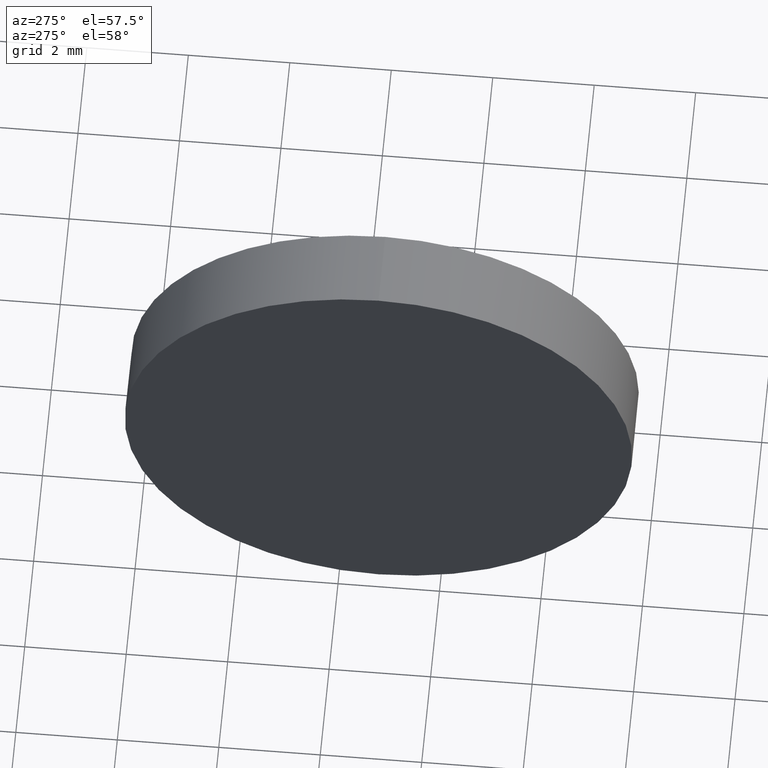
[diagram: clean part render]
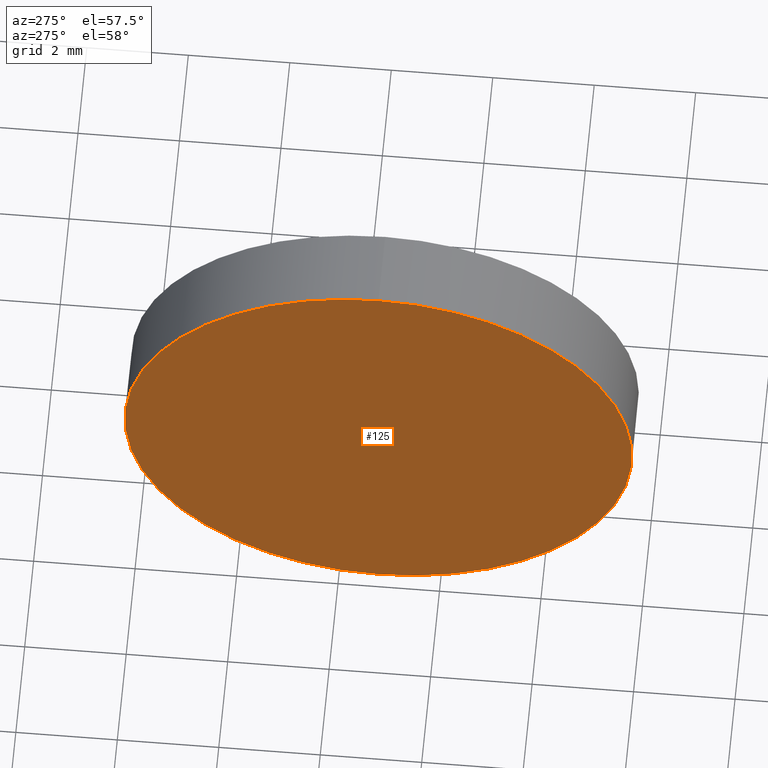
[diagram: same view with one face highlighted and labeled with its STEP entity id]
A machine part, auxiliary view. The second image highlights one B-rep face of the part: STEP entity #125.
In plain terms, the highlighted planar face has unit normal (1, 0, 0).
Its self-contained STEP definition (entity closure, byte-faithful):
#10 = DIRECTION ( 'NONE',  ( -1.000000000000000000, -0.0000000000000000000, -0.0000000000000000000 ) ) ;
#34 = ORIENTED_EDGE ( 'NONE', *, *, #93, .T. ) ;
#41 = CARTESIAN_POINT ( 'NONE',  ( 662.1498540969860200, 171.2161113071353800, 5.000000000000004400 ) ) ;
#44 = VERTEX_POINT ( 'NONE', #41 ) ;
#49 = EDGE_LOOP ( 'NONE', ( #34, #155 ) ) ;
#55 = DIRECTION ( 'NONE',  ( 0.0000000000000000000, 0.0000000000000000000, 1.000000000000000000 ) ) ;
#57 = DIRECTION ( 'NONE',  ( 1.000000000000000000, 0.0000000000000000000, 0.0000000000000000000 ) ) ;
#68 = AXIS2_PLACEMENT_3D ( 'NONE', #146, #57, #79 ) ;
#72 = CIRCLE ( 'NONE', #123, 5.000000000000004400 ) ;
#79 = DIRECTION ( 'NONE',  ( 0.0000000000000000000, 0.0000000000000000000, -1.000000000000000000 ) ) ;
#92 = DIRECTION ( 'NONE',  ( -1.000000000000000000, -0.0000000000000000000, -0.0000000000000000000 ) ) ;
#93 = EDGE_CURVE ( 'NONE', #44, #124, #72, .T. ) ;
#108 = EDGE_CURVE ( 'NONE', #124, #44, #180, .T. ) ;
#109 = FACE_OUTER_BOUND ( 'NONE', #49, .T. ) ;
#118 = DIRECTION ( 'NONE',  ( 0.0000000000000000000, 0.0000000000000000000, 1.000000000000000000 ) ) ;
#119 = CARTESIAN_POINT ( 'NONE',  ( 662.1498540969860200, 171.2161113071353800, -5.000000000000004400 ) ) ;
#123 = AXIS2_PLACEMENT_3D ( 'NONE', #171, #10, #118 ) ;
#124 = VERTEX_POINT ( 'NONE', #119 ) ;
#125 = ADVANCED_FACE ( 'NONE', ( #109 ), #135, .F. ) ;
#135 = PLANE ( 'NONE',  #68 ) ;
#136 = CARTESIAN_POINT ( 'NONE',  ( 662.1498540969860200, 171.2161113071353800, 0.0000000000000000000 ) ) ;
#146 = CARTESIAN_POINT ( 'NONE',  ( 662.1498540969860200, 171.2161113071353800, 0.0000000000000000000 ) ) ;
#155 = ORIENTED_EDGE ( 'NONE', *, *, #108, .T. ) ;
#160 = AXIS2_PLACEMENT_3D ( 'NONE', #136, #92, #55 ) ;
#171 = CARTESIAN_POINT ( 'NONE',  ( 662.1498540969860200, 171.2161113071353800, 0.0000000000000000000 ) ) ;
#180 = CIRCLE ( 'NONE', #160, 5.000000000000004400 ) ;